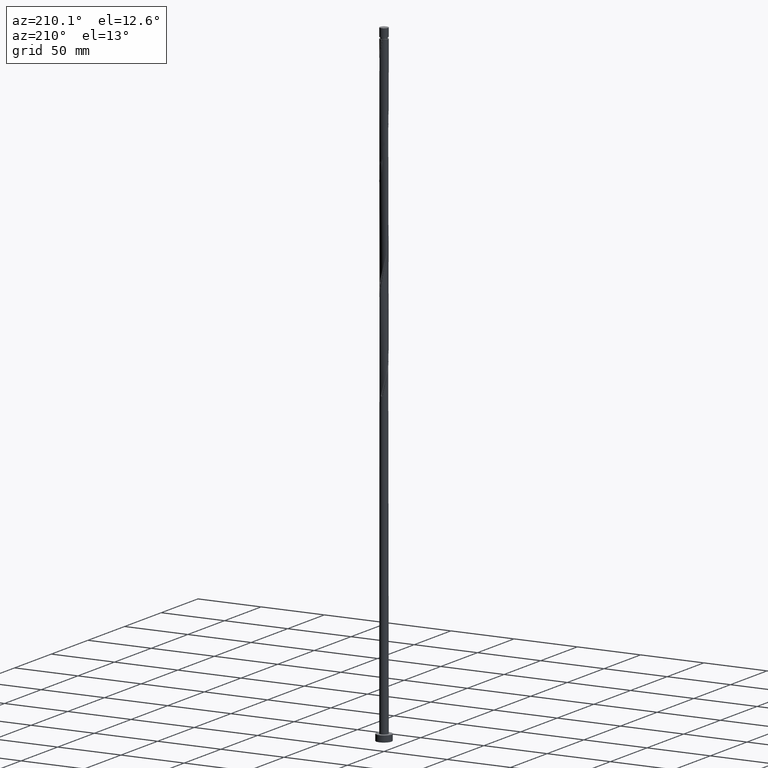
[diagram: clean part render]
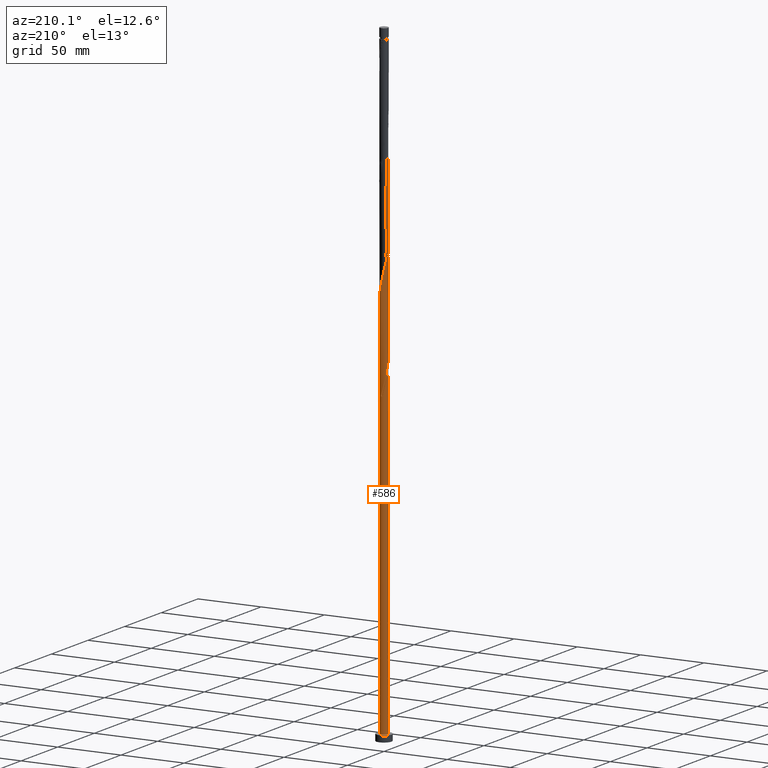
[diagram: same view with one face highlighted and labeled with its STEP entity id]
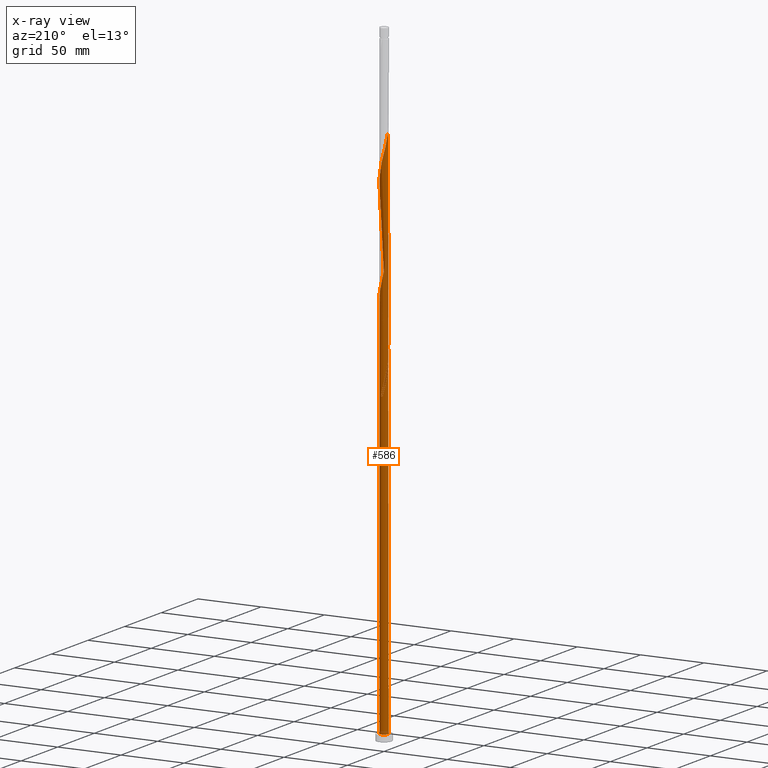
[diagram: x-ray of the same camera — body ghosted, the highlighted face saturated]
A machine part, auxiliary view. The second image highlights one B-rep face of the part: STEP entity #586.
The next image is the same camera in x-ray: the body ghosted, the highlighted face saturated — about 0% of this face is hidden behind the body in this view.
In plain terms, the highlighted cylindrical surface (bore or boss wall) has radius 3.25 mm, axis along (-0, -0, -1).
Its self-contained STEP definition (entity closure, byte-faithful):
#17 = CARTESIAN_POINT ( 'NONE',  ( -3.248698510852201071, -0.3330467144267394430, 261.6656047902229147 ) ) ;
#23 = CARTESIAN_POINT ( 'NONE',  ( -2.288920203698420863, -2.307237374242452788, 270.7801881235562291 ) ) ;
#28 = CARTESIAN_POINT ( 'NONE',  ( 0.3071423234190679419, 3.251249870675660070, 404.8947714568895435 ) ) ;
#32 = CARTESIAN_POINT ( 'NONE',  ( 0.6467418341193081899, -3.185000000000003606, 283.8010214568896572 ) ) ;
#38 = CARTESIAN_POINT ( 'NONE',  ( 1.550918139681272345, -2.873954601661504071, 371.0406047902229147 ) ) ;
#44 = CARTESIAN_POINT ( 'NONE',  ( -3.249974190763930348, -0.01295219550383595354, 260.3635214568896004 ) ) ;
#53 = CARTESIAN_POINT ( 'NONE',  ( -0.9355280540232800979, -3.128857521290985932, 277.2906047902229147 ) ) ;
#55 = VERTEX_POINT ( 'NONE', #1147 ) ;
#69 = CARTESIAN_POINT ( 'NONE',  ( -3.121301489147807917, -0.9604369538118774363, 347.6031047902229716 ) ) ;
#91 = CARTESIAN_POINT ( 'NONE',  ( -2.886224932046612235, 1.527961966161554663, 337.1864381235563428 ) ) ;
#100 = EDGE_CURVE ( 'NONE', #1021, #1805, #393, .T. ) ;
#103 = CARTESIAN_POINT ( 'NONE',  ( -3.249974190763930348, -0.01295219550383595354, 343.6968547902228579 ) ) ;
#116 = CARTESIAN_POINT ( 'NONE',  ( -1.816358275444451609, 2.695058926113581776, 330.6760214568896004 ) ) ;
#131 = CARTESIAN_POINT ( 'NONE',  ( -0.9355280540232774333, 3.128857521290980603, 248.6447714568896856 ) ) ;
#145 = EDGE_LOOP ( 'NONE', ( #383, #1097, #611, #1856, #1432, #1929, #1657, #410, #1222 ) ) ;
#158 = CARTESIAN_POINT ( 'NONE',  ( -3.007541226668799528, 1.231745010092417436, 421.8218547902229716 ) ) ;
#162 = CARTESIAN_POINT ( 'NONE',  ( 0.000000000000000000, 0.000000000000000000, 242.1343547902230000 ) ) ;
#173 = CARTESIAN_POINT ( 'NONE',  ( -0.6213351887211736591, -3.190053695983322779, 278.5926881235562291 ) ) ;
#178 = CARTESIAN_POINT ( 'NONE',  ( -1.816358275444451609, 2.695058926113581776, 414.0093547902228579 ) ) ;
#184 = CARTESIAN_POINT ( 'NONE',  ( -2.695058926113581776, -1.816358275444451165, 268.1760214568896572 ) ) ;
#192 = CARTESIAN_POINT ( 'NONE',  ( -0.3071423234190676088, -3.251249870675660070, 363.2281047902229716 ) ) ;
#193 = CARTESIAN_POINT ( 'NONE',  ( -1.816358275444451609, 2.695058926113581776, 247.3426881235563144 ) ) ;
#202 = CARTESIAN_POINT ( 'NONE',  ( -2.288920203698420863, -2.307237374242452788, 354.1135214568895435 ) ) ;
#216 = CARTESIAN_POINT ( 'NONE',  ( 0.6467418341193081899, -3.185000000000003606, 367.1343547902229147 ) ) ;
#225 = FACE_OUTER_BOUND ( 'NONE', #145, .T. ) ;
#230 = CARTESIAN_POINT ( 'NONE',  ( 3.185000000000003606, 0.6467418341193080789, 387.9676881235561723 ) ) ;
#236 = CARTESIAN_POINT ( 'NONE',  ( -0.3330467144267403312, 3.248698510852201071, 407.4989381235562291 ) ) ;
#241 = CARTESIAN_POINT ( 'NONE',  ( 2.709450634661944690, -1.794819561496368898, 294.2176881235562860 ) ) ;
#242 = DIRECTION ( 'NONE',  ( -0.000000000000000000, -0.000000000000000000, -1.000000000000000000 ) ) ;
#244 = CYLINDRICAL_SURFACE ( 'NONE', #1769, 3.250000000000000444 ) ;
#265 = CARTESIAN_POINT ( 'NONE',  ( 2.061677156831182245, 2.532676337277277590, 397.0822714568896572 ) ) ;
#277 = CARTESIAN_POINT ( 'NONE',  ( 0.3071423234190679419, 3.251249870675660070, 321.5614381235562860 ) ) ;
#282 = VERTEX_POINT ( 'NONE', #1324 ) ;
#286 = CARTESIAN_POINT ( 'NONE',  ( 2.997628045404655328, 1.255677546746574613, 307.2385214568896572 ) ) ;
#295 = CARTESIAN_POINT ( 'NONE',  ( -0.9604369538118772143, 3.121301489147807917, 410.1031047902229147 ) ) ;
#309 = CARTESIAN_POINT ( 'NONE',  ( -3.249974190763924575, 0.01295219550383701346, 265.5718547902229147 ) ) ;
#344 = VERTEX_POINT ( 'NONE', #911 ) ;
#352 = EDGE_CURVE ( 'NONE', #282, #55, #735, .T. ) ;
#363 = CARTESIAN_POINT ( 'NONE',  ( -0.9355280540232800979, -3.128857521290985932, 360.6239381235562860 ) ) ;
#364 = CARTESIAN_POINT ( 'NONE',  ( 0.01295219550383510179, -3.249974190763930348, 281.1968547902229147 ) ) ;
#374 = CARTESIAN_POINT ( 'NONE',  ( 2.873954601661504071, 1.550918139681272123, 308.5406047902229716 ) ) ;
#380 = CARTESIAN_POINT ( 'NONE',  ( -3.250000000000000444, 0.000000000000000000, 500.0000000000000000 ) ) ;
#383 = ORIENTED_EDGE ( 'NONE', *, *, #100, .F. ) ;
#391 = CARTESIAN_POINT ( 'NONE',  ( -1.255677546746574391, 2.997628045404656216, 328.0718547902229147 ) ) ;
#393 = LINE ( 'NONE', #1001, #1860 ) ;
#399 = EDGE_CURVE ( 'NONE', #1805, #55, #1438, .T. ) ;
#410 = ORIENTED_EDGE ( 'NONE', *, *, #352, .T. ) ;
#423 = CARTESIAN_POINT ( 'NONE',  ( -2.081798411207630206, 2.516163250565659038, 248.6447714568896572 ) ) ;
#427 = CARTESIAN_POINT ( 'NONE',  ( 1.527961966161555774, 2.886224932046612235, 399.6864381235562860 ) ) ;
#428 = CARTESIAN_POINT ( 'NONE',  ( 0.6213351887211757685, 3.190053695983322335, 320.2593547902229716 ) ) ;
#430 = CARTESIAN_POINT ( 'NONE',  ( -3.248698510852195298, 0.3330467144267397761, 264.2697714568896004 ) ) ;
#432 = CARTESIAN_POINT ( 'NONE',  ( -3.007541226668799528, 1.231745010092417436, 255.1551881235563144 ) ) ;
#437 = CARTESIAN_POINT ( 'NONE',  ( 2.532676337277277145, -2.061677156831183133, 292.9156047902229716 ) ) ;
#441 = CARTESIAN_POINT ( 'NONE',  ( -1.794819561496365123, 2.709450634661940693, 252.5510214568896572 ) ) ;
#452 = CARTESIAN_POINT ( 'NONE',  ( -3.121301489147800368, 0.9604369538118764371, 261.6656047902229147 ) ) ;
#458 = CARTESIAN_POINT ( 'NONE',  ( -2.709450634661944690, 1.794819561496368454, 252.5510214568895719 ) ) ;
#460 = CARTESIAN_POINT ( 'NONE',  ( -2.886224932046612235, 1.527961966161554663, 420.5197714568896572 ) ) ;
#464 = CARTESIAN_POINT ( 'NONE',  ( 0.3330467144267392210, -3.248698510852201071, 365.8322714568895435 ) ) ;
#466 = CARTESIAN_POINT ( 'NONE',  ( 0.3330467144267399981, 3.248698510852195298, 243.4364381235562860 ) ) ;
#471 = CARTESIAN_POINT ( 'NONE',  ( -2.709450634661944690, 1.794819561496368454, 419.2176881235562860 ) ) ;
#476 = CARTESIAN_POINT ( 'NONE',  ( -2.997628045404656216, -1.255677546746574391, 265.5718547902228579 ) ) ;
#495 = CARTESIAN_POINT ( 'NONE',  ( -1.794819561496368454, -2.709450634661944690, 273.3843547902229716 ) ) ;
#501 = CARTESIAN_POINT ( 'NONE',  ( 0.9604369538118772143, -3.121301489147807917, 368.4364381235562291 ) ) ;
#505 = CARTESIAN_POINT ( 'NONE',  ( -1.527961966161554663, -2.886224932046612679, 358.0197714568896572 ) ) ;
#506 = CARTESIAN_POINT ( 'NONE',  ( -2.873954601661504071, -1.550918139681272345, 266.8739381235563428 ) ) ;
#517 = CARTESIAN_POINT ( 'NONE',  ( 0.9604369538118772143, -3.121301489147807917, 285.1031047902229716 ) ) ;
#525 = CARTESIAN_POINT ( 'NONE',  ( 3.249974190763929904, 0.01295219550383489189, 385.3635214568896004 ) ) ;
#528 = CARTESIAN_POINT ( 'NONE',  ( 3.128857521290985932, -0.9355280540232800979, 298.1239381235563428 ) ) ;
#544 = CARTESIAN_POINT ( 'NONE',  ( -0.9604369538118772143, 3.121301489147807917, 326.7697714568896004 ) ) ;
#550 = AXIS2_PLACEMENT_3D ( 'NONE', #1352, #1365, #1031 ) ;
#563 = CARTESIAN_POINT ( 'NONE',  ( -0.01295219550383478260, 3.249974190763929904, 322.8635214568894867 ) ) ;
#574 = CARTESIAN_POINT ( 'NONE',  ( -3.248698510852201071, -0.3330467144267394430, 344.9989381235563428 ) ) ;
#578 = CARTESIAN_POINT ( 'NONE',  ( -2.886224932046612235, 1.527961966161554663, 253.8531047902229432 ) ) ;
#583 = CARTESIAN_POINT ( 'NONE',  ( -2.532676337277277590, 2.061677156831182689, 334.5822714568896004 ) ) ;
#585 = CARTESIAN_POINT ( 'NONE',  ( -3.250000000000000000, 1.108978815598836682E-16, 265.6245517682197601 ) ) ;
#586 = ADVANCED_FACE ( 'NONE', ( #225 ), #244, .T. ) ;
#599 = CARTESIAN_POINT ( 'NONE',  ( -0.9604369538118772143, 3.121301489147807917, 243.4364381235563428 ) ) ;
#611 = ORIENTED_EDGE ( 'NONE', *, *, #1165, .T. ) ;
#619 = CARTESIAN_POINT ( 'NONE',  ( -1.527961966161551111, 2.886224932046607350, 251.2489381235563144 ) ) ;
#633 = CARTESIAN_POINT ( 'NONE',  ( -2.307237374242453232, 2.288920203698419975, 416.6135214568894867 ) ) ;
#638 = CARTESIAN_POINT ( 'NONE',  ( -0.3071423234190676088, -3.251249870675660070, 279.8947714568896572 ) ) ;
#644 = CARTESIAN_POINT ( 'NONE',  ( -1.527961966161554663, -2.886224932046612679, 274.6864381235561723 ) ) ;
#662 = CARTESIAN_POINT ( 'NONE',  ( 2.997628045404655328, 1.255677546746574613, 390.5718547902229147 ) ) ;
#679 = CARTESIAN_POINT ( 'NONE',  ( 2.532676337277277145, -2.061677156831183133, 376.2489381235563428 ) ) ;
#684 = CARTESIAN_POINT ( 'NONE',  ( 3.248698510852201071, 0.3330467144267406088, 303.3322714568896004 ) ) ;
#708 = CARTESIAN_POINT ( 'NONE',  ( -2.081798411207630206, 2.516163250565659038, 331.9781047902229147 ) ) ;
#727 = CARTESIAN_POINT ( 'NONE',  ( 0.01295219550383680182, 3.249974190763924575, 244.7385214568896004 ) ) ;
#728 = AXIS2_PLACEMENT_3D ( 'NONE', #1068, #1387, #1682 ) ;
#730 = CARTESIAN_POINT ( 'NONE',  ( -1.550918139681272789, 2.873954601661503627, 246.0406047902228863 ) ) ;
#735 = CIRCLE ( 'NONE', #1180, 3.250000000000000444 ) ;
#778 = EDGE_CURVE ( 'NONE', #282, #1083, #1777, .T. ) ;
#800 = DIRECTION ( 'NONE',  ( -0.000000000000000000, -0.000000000000000000, -1.000000000000000000 ) ) ;
#822 = CARTESIAN_POINT ( 'NONE',  ( 2.307237374242453232, -2.288920203698421307, 291.6135214568896004 ) ) ;
#838 = EDGE_CURVE ( 'NONE', #979, #344, #1408, .T. ) ;
#847 = CARTESIAN_POINT ( 'NONE',  ( -2.307237374242453232, 2.288920203698419975, 333.2801881235563428 ) ) ;
#866 = CARTESIAN_POINT ( 'NONE',  ( 1.794819561496368898, 2.709450634661944690, 398.3843547902227442 ) ) ;
#885 = CARTESIAN_POINT ( 'NONE',  ( 3.249974190763929904, 0.01295219550383489189, 302.0301881235562291 ) ) ;
#887 = CARTESIAN_POINT ( 'NONE',  ( 1.231745010092417214, 3.007541226668799528, 400.9885214568894867 ) ) ;
#894 = CARTESIAN_POINT ( 'NONE',  ( -3.250000000000006661, 0.3135593985191898470, 259.0348443734768011 ) ) ;
#898 = CARTESIAN_POINT ( 'NONE',  ( 2.695058926113581776, 1.816358275444452053, 309.8426881235562291 ) ) ;
#911 = CARTESIAN_POINT ( 'NONE',  ( 3.250000000000000444, 0.000000000000000000, 5.000000000000000000 ) ) ;
#916 = CARTESIAN_POINT ( 'NONE',  ( -3.128857521290985932, 0.9355280540232800979, 256.4572714568896004 ) ) ;
#920 = CARTESIAN_POINT ( 'NONE',  ( -2.997628045404650443, 1.255677546746573281, 260.3635214568896004 ) ) ;
#933 = CARTESIAN_POINT ( 'NONE',  ( -1.255677546746574391, 2.997628045404656216, 411.4051881235562860 ) ) ;
#939 = CARTESIAN_POINT ( 'NONE',  ( -3.250000000000004885, 9.719873148483848127E-16, 260.3108244788927550 ) ) ;
#947 = LINE ( 'NONE', #380, #1828 ) ;
#955 = CARTESIAN_POINT ( 'NONE',  ( 3.007541226668799528, -1.231745010092417214, 380.1551881235562860 ) ) ;
#967 = CARTESIAN_POINT ( 'NONE',  ( 0.01295219550383510179, -3.249974190763930348, 364.5301881235562860 ) ) ;
#968 = CARTESIAN_POINT ( 'NONE',  ( -3.121301489147807917, -0.9604369538118774363, 264.2697714568896004 ) ) ;
#978 = CARTESIAN_POINT ( 'NONE',  ( -0.6213351887211736591, -3.190053695983322779, 361.9260214568895435 ) ) ;
#979 = VERTEX_POINT ( 'NONE', #1793 ) ;
#985 = CARTESIAN_POINT ( 'NONE',  ( 3.248698510852201071, 0.3330467144267406088, 386.6656047902229716 ) ) ;
#998 = CARTESIAN_POINT ( 'NONE',  ( -0.6467418341193077458, 3.185000000000003606, 325.4676881235562860 ) ) ;
#1001 = CARTESIAN_POINT ( 'NONE',  ( -3.250000000000000444, 0.000000000000000000, 500.0000000000000000 ) ) ;
#1008 = CARTESIAN_POINT ( 'NONE',  ( 0.9355280540232803199, 3.128857521290985932, 318.9572714568896004 ) ) ;
#1010 = CARTESIAN_POINT ( 'NONE',  ( 2.886224932046612235, -1.527961966161555774, 295.5197714568896004 ) ) ;
#1014 = DIRECTION ( 'NONE',  ( -0.000000000000000000, -0.000000000000000000, -1.000000000000000000 ) ) ;
#1019 = CARTESIAN_POINT ( 'NONE',  ( -3.251249870675660958, 0.3071423234190671647, 342.3947714568896004 ) ) ;
#1021 = VERTEX_POINT ( 'NONE', #1323 ) ;
#1027 = CARTESIAN_POINT ( 'NONE',  ( -3.185000000000003606, -0.6467418341193084119, 346.3010214568895435 ) ) ;
#1031 = DIRECTION ( 'NONE',  ( 1.000000000000000000, 0.000000000000000000, 0.000000000000000000 ) ) ;
#1033 = CARTESIAN_POINT ( 'NONE',  ( -0.01295219550383478260, 3.249974190763929904, 406.1968547902229147 ) ) ;
#1037 = CARTESIAN_POINT ( 'NONE',  ( -2.873954601661499186, 1.550918139681270347, 259.0614381235562860 ) ) ;
#1040 = CARTESIAN_POINT ( 'NONE',  ( -3.190053695983322779, 0.6213351887211735480, 257.7593547902229147 ) ) ;
#1044 = CARTESIAN_POINT ( 'NONE',  ( 3.121301489147807917, 0.9604369538118755489, 305.9364381235562860 ) ) ;
#1068 = CARTESIAN_POINT ( 'NONE',  ( 0.000000000000000000, 0.000000000000000000, 5.000000000000000000 ) ) ;
#1071 = DIRECTION ( 'NONE',  ( 0.000000000000000000, 1.000000000000000000, -1.708035422500240443E-14 ) ) ;
#1077 = CARTESIAN_POINT ( 'NONE',  ( -3.128857521290985932, 0.9355280540232800979, 423.1239381235563997 ) ) ;
#1083 = VERTEX_POINT ( 'NONE', #1206 ) ;
#1095 = CARTESIAN_POINT ( 'NONE',  ( -2.997628045404656216, -1.255677546746574391, 348.9051881235563428 ) ) ;
#1097 = ORIENTED_EDGE ( 'NONE', *, *, #1687, .F. ) ;
#1101 = CARTESIAN_POINT ( 'NONE',  ( 2.307237374242453232, -2.288920203698421307, 374.9468547902228579 ) ) ;
#1109 = CARTESIAN_POINT ( 'NONE',  ( 1.550918139681272345, -2.873954601661504071, 287.7072714568896004 ) ) ;
#1128 = CARTESIAN_POINT ( 'NONE',  ( 1.794819561496368898, 2.709450634661944690, 315.0510214568896004 ) ) ;
#1146 = CARTESIAN_POINT ( 'NONE',  ( -2.061677156831183133, -2.532676337277277590, 355.4156047902229147 ) ) ;
#1147 = CARTESIAN_POINT ( 'NONE',  ( 0.6467418341193087450, 3.184999999999997833, 242.1343547902229432 ) ) ;
#1155 = CARTESIAN_POINT ( 'NONE',  ( 1.527961966161555774, 2.886224932046612235, 316.3531047902229147 ) ) ;
#1165 = EDGE_CURVE ( 'NONE', #1083, #979, #947, .T. ) ;
#1169 = CARTESIAN_POINT ( 'NONE',  ( 0.000000000000000000, 0.000000000000000000, 500.0000000000000000 ) ) ;
#1180 = AXIS2_PLACEMENT_3D ( 'NONE', #162, #1813, #1071 ) ;
#1185 = CARTESIAN_POINT ( 'NONE',  ( -3.249999999999999556, 0.006476123466349236434, 265.5981982137024602 ) ) ;
#1190 = CARTESIAN_POINT ( 'NONE',  ( -2.532676337277277590, 2.061677156831182689, 251.2489381235563712 ) ) ;
#1206 = CARTESIAN_POINT ( 'NONE',  ( -3.250000000000004885, 9.719873148483848127E-16, 260.3108244788927550 ) ) ;
#1218 = CARTESIAN_POINT ( 'NONE',  ( -0.6213351887211718827, 3.190053695983317006, 247.3426881235562576 ) ) ;
#1222 = ORIENTED_EDGE ( 'NONE', *, *, #399, .F. ) ;
#1228 = CARTESIAN_POINT ( 'NONE',  ( -2.288920203698416422, 2.307237374242450123, 255.1551881235563144 ) ) ;
#1249 = CARTESIAN_POINT ( 'NONE',  ( 0.3330467144267392210, -3.248698510852201071, 282.4989381235562860 ) ) ;
#1256 = CARTESIAN_POINT ( 'NONE',  ( 1.255677546746574835, -2.997628045404655328, 286.4051881235562291 ) ) ;
#1264 = CARTESIAN_POINT ( 'NONE',  ( 2.873954601661504071, 1.550918139681272123, 391.8739381235562291 ) ) ;
#1266 = CARTESIAN_POINT ( 'NONE',  ( -2.516163250565659038, -2.081798411207630206, 352.8114381235562291 ) ) ;
#1278 = CARTESIAN_POINT ( 'NONE',  ( 2.061677156831182245, 2.532676337277277590, 313.7489381235562291 ) ) ;
#1283 = CARTESIAN_POINT ( 'NONE',  ( 2.081798411207630206, -2.516163250565659038, 373.6447714568897140 ) ) ;
#1290 = CARTESIAN_POINT ( 'NONE',  ( -2.695058926113581776, -1.816358275444451165, 351.5093547902228579 ) ) ;
#1291 = CARTESIAN_POINT ( 'NONE',  ( 2.516163250565659038, 2.081798411207630206, 311.1447714568896572 ) ) ;
#1316 = DIRECTION ( 'NONE',  ( -1.000000000000000000, 0.000000000000000000, 0.000000000000000000 ) ) ;
#1323 = CARTESIAN_POINT ( 'NONE',  ( -3.250000000000004885, 9.719873148483848127E-16, 426.9774911455594975 ) ) ;
#1324 = CARTESIAN_POINT ( 'NONE',  ( -0.6467418341193077458, 3.185000000000003606, 242.1343547902229432 ) ) ;
#1335 = CARTESIAN_POINT ( 'NONE',  ( -2.516163250565653708, 2.081798411207627986, 256.4572714568896572 ) ) ;
#1345 = CARTESIAN_POINT ( 'NONE',  ( 3.251249870675660070, -0.3071423234190678309, 300.7281047902229147 ) ) ;
#1352 = CARTESIAN_POINT ( 'NONE',  ( 0.000000000000000000, 0.000000000000000000, 5.000000000000000000 ) ) ;
#1365 = DIRECTION ( 'NONE',  ( 0.000000000000000000, 0.000000000000000000, 1.000000000000000000 ) ) ;
#1378 = CARTESIAN_POINT ( 'NONE',  ( -3.190053695983322779, 0.6213351887211735480, 424.4260214568896572 ) ) ;
#1387 = DIRECTION ( 'NONE',  ( 0.000000000000000000, 0.000000000000000000, 1.000000000000000000 ) ) ;
#1401 = CARTESIAN_POINT ( 'NONE',  ( -2.516163250565659038, -2.081798411207630206, 269.4781047902229147 ) ) ;
#1405 = CARTESIAN_POINT ( 'NONE',  ( 0.6213351887211757685, 3.190053695983322335, 403.5926881235561723 ) ) ;
#1408 = CIRCLE ( 'NONE', #550, 3.250000000000000444 ) ;
#1411 = CARTESIAN_POINT ( 'NONE',  ( -1.231745010092417214, -3.007541226668799972, 275.9885214568896572 ) ) ;
#1429 = CARTESIAN_POINT ( 'NONE',  ( 3.251249870675660070, -0.3071423234190678309, 384.0614381235565133 ) ) ;
#1432 = ORIENTED_EDGE ( 'NONE', *, *, #1484, .T. ) ;
#1435 = CARTESIAN_POINT ( 'NONE',  ( 1.255677546746574835, -2.997628045404655328, 369.7385214568895435 ) ) ;
#1438 =( BOUNDED_CURVE ( )  B_SPLINE_CURVE ( 2, ( #585, #1185, #309, #430, #1977, #452, #920, #1037, #1500, #1335, #1228, #1654, #441, #619, #1955, #131, #1218, #1835, #727, #466, #1488 ),
 .UNSPECIFIED., .F., .T. ) 
 B_SPLINE_CURVE_WITH_KNOTS ( ( 3, 2, 2, 2, 2, 2, 2, 2, 2, 2, 3 ),
 ( 0.9295286902180871502, 0.9296875000000000000, 0.9375000000000000000, 0.9453125000000000000, 0.9531250000000000000, 0.9609375000000000000, 0.9687500000000000000, 0.9765625000000000000, 0.9843750000000000000, 0.9921875000000000000, 1.000000000000000000 ),
 .UNSPECIFIED. ) 
 CURVE ( )  GEOMETRIC_REPRESENTATION_ITEM ( )  RATIONAL_B_SPLINE_CURVE ( ( 0.9089165573359710981, 0.9090019243628759682, 0.9090909090909677914, 0.9047133878838736765, 0.9090909090909677914, 0.9047133878838736765, 0.9090909090909677914, 0.9047133878838736765, 0.9090909090909677914, 0.9047133878838736765, 0.9090909090909677914, 0.9047133878838736765, 0.9090909090909677914, 0.9047133878838736765, 0.9090909090909677914, 0.9047133878838736765, 0.9090909090909677914, 0.9047133878838736765, 0.9090909090909677914, 0.9047133878838736765, 0.9090909090909677914 ) ) 
 REPRESENTATION_ITEM ( '' )  );
#1448 = CARTESIAN_POINT ( 'NONE',  ( 3.121301489147807917, 0.9604369538118755489, 389.2697714568896004 ) ) ;
#1458 = CARTESIAN_POINT ( 'NONE',  ( 3.007541226668799528, -1.231745010092417214, 296.8218547902228579 ) ) ;
#1467 = CARTESIAN_POINT ( 'NONE',  ( -2.709450634661944690, 1.794819561496368454, 335.8843547902229716 ) ) ;
#1476 = CARTESIAN_POINT ( 'NONE',  ( -3.190053695983322779, 0.6213351887211735480, 341.0926881235562291 ) ) ;
#1484 = EDGE_CURVE ( 'NONE', #344, #979, #1563, .T. ) ;
#1488 = CARTESIAN_POINT ( 'NONE',  ( 0.6467418341193088560, 3.184999999999997833, 242.1343547902229432 ) ) ;
#1489 =( BOUNDED_CURVE ( )  B_SPLINE_CURVE ( 2, ( #939, #1555, #44, #17, #1548, #968, #476, #506, #184, #1401, #23, #1719, #495, #644, #1411, #53, #173, #638, #364, #1249, #32, #517, #1256, #1109, #1583, #1731, #822, #437, #241, #1010, #1458, #528, #1625, #1345, #885, #684, #1901, #1044, #286, #374, #898, #1291, #1509, #1278, #1128, #1155, #1917, #1008, #428, #277, #563, #1622, #998, #544, #391, #1613, #116, #708, #847, #583, #1467, #91, #1783, #1791, #1476, #1019, #103, #574, #1027, #69, #1095, #1741, #1290, #1266, #202, #1146, #1768, #505, #1565, #363, #978, #192, #967, #464, #216, #501, #1435, #38, #1570, #1283, #1101, #679, #1896, #1725, #955, #1526, #1573, #1429, #525, #985, #230, #1448, #662, #1264, #1604, #1632, #1944, #265, #866, #427, #887, #1764, #1405, #28, #1033, #236, #1619, #295, #933, #1972, #178, #1830, #633, #1507, #471, #460, #158, #1077, #1378, #1696, #1551 ),
 .UNSPECIFIED., .F., .T. ) 
 B_SPLINE_CURVE_WITH_KNOTS ( ( 3, 2, 2, 2, 2, 2, 2, 2, 2, 2, 2, 2, 2, 2, 2, 2, 2, 2, 2, 2, 2, 2, 2, 2, 2, 2, 2, 2, 2, 2, 2, 2, 2, 2, 2, 2, 2, 2, 2, 2, 2, 2, 2, 2, 2, 2, 2, 2, 2, 2, 2, 2, 2, 2, 2, 2, 2, 2, 2, 2, 2, 2, 2, 2, 2, 3 ),
 ( 0.05452869021808715022, 0.05468750000000000000, 0.06250000000000000000, 0.07031250000000000000, 0.07812500000000000000, 0.08593750000000000000, 0.09375000000000000000, 0.1015625000000000000, 0.1093750000000000000, 0.1171875000000000000, 0.1250000000000000000, 0.1328125000000000000, 0.1406250000000000000, 0.1484375000000000000, 0.1562500000000000000, 0.1640625000000000000, 0.1718750000000000000, 0.1796875000000000000, 0.1875000000000000000, 0.1953125000000000000, 0.2031250000000000000, 0.2109375000000000000, 0.2187500000000000000, 0.2265625000000000000, 0.2343750000000000000, 0.2421875000000000000, 0.2500000000000000000, 0.2578125000000000000, 0.2656250000000000000, 0.2734375000000000000, 0.2812500000000000000, 0.2890625000000000000, 0.2968750000000000000, 0.3046875000000000000, 0.3125000000000000000, 0.3203125000000000000, 0.3281250000000000000, 0.3359375000000000000, 0.3437500000000000000, 0.3515625000000000000, 0.3593750000000000000, 0.3671875000000000000, 0.3750000000000000000, 0.3828125000000000000, 0.3906250000000000000, 0.3984375000000000000, 0.4062500000000000000, 0.4140625000000000000, 0.4218750000000000000, 0.4296875000000000000, 0.4375000000000000000, 0.4453125000000000000, 0.4531250000000000000, 0.4609375000000000000, 0.4687500000000000000, 0.4765625000000000000, 0.4843750000000000000, 0.4921875000000000000, 0.5000000000000000000, 0.5078125000000000000, 0.5156250000000000000, 0.5234375000000000000, 0.5312500000000000000, 0.5390625000000000000, 0.5468750000000000000, 0.5545286902180868172 ),
 .UNSPECIFIED. ) 
 CURVE ( )  GEOMETRIC_REPRESENTATION_ITEM ( )  RATIONAL_B_SPLINE_CURVE ( ( 0.9089165573359779815, 0.9090019243628828516, 0.9090909090909746748, 0.9047133878838805598, 0.9090909090909746748, 0.9047133878838805598, 0.9090909090909746748, 0.9047133878838805598, 0.9090909090909746748, 0.9047133878838805598, 0.9090909090909746748, 0.9047133878838805598, 0.9090909090909746748, 0.9047133878838805598, 0.9090909090909746748, 0.9047133878838805598, 0.9090909090909746748, 0.9047133878838805598, 0.9090909090909746748, 0.9047133878838805598, 0.9090909090909746748, 0.9047133878838805598, 0.9090909090909746748, 0.9047133878838805598, 0.9090909090909746748, 0.9047133878838805598, 0.9090909090909746748, 0.9047133878838805598, 0.9090909090909746748, 0.9047133878838805598, 0.9090909090909746748, 0.9047133878838805598, 0.9090909090909746748, 0.9047133878838805598, 0.9090909090909746748, 0.9047133878838805598, 0.9090909090909746748, 0.9047133878838805598, 0.9090909090909746748, 0.9047133878838805598, 0.9090909090909746748, 0.9047133878838805598, 0.9090909090909746748, 0.9047133878838805598, 0.9090909090909746748, 0.9047133878838805598, 0.9090909090909746748, 0.9047133878838805598, 0.9090909090909746748, 0.9047133878838805598, 0.9090909090909746748, 0.9047133878838805598, 0.9090909090909746748, 0.9047133878838805598, 0.9090909090909746748, 0.9047133878838805598, 0.9090909090909746748, 0.9047133878838805598, 0.9090909090909746748, 0.9047133878838805598, 0.9090909090909746748, 0.9047133878838805598, 0.9090909090909746748, 0.9047133878838805598, 0.9090909090909746748, 0.9047133878838805598, 0.9090909090909746748, 0.9047133878838805598, 0.9090909090909746748, 0.9047133878838805598, 0.9090909090909746748, 0.9047133878838805598, 0.9090909090909746748, 0.9047133878838805598, 0.9090909090909746748, 0.9047133878838805598, 0.9090909090909746748, 0.9047133878838805598, 0.9090909090909746748, 0.9047133878838805598, 0.9090909090909746748, 0.9047133878838805598, 0.9090909090909746748, 0.9047133878838805598, 0.9090909090909746748, 0.9047133878838805598, 0.9090909090909746748, 0.9047133878838805598, 0.9090909090909746748, 0.9047133878838805598, 0.9090909090909746748, 0.9047133878838805598, 0.9090909090909746748, 0.9047133878838805598, 0.9090909090909746748, 0.9047133878838805598, 0.9090909090909746748, 0.9047133878838805598, 0.9090909090909746748, 0.9047133878838805598, 0.9090909090909746748, 0.9047133878838805598, 0.9090909090909746748, 0.9047133878838805598, 0.9090909090909746748, 0.9047133878838805598, 0.9090909090909746748, 0.9047133878838805598, 0.9090909090909746748, 0.9047133878838805598, 0.9090909090909746748, 0.9047133878838805598, 0.9090909090909746748, 0.9047133878838805598, 0.9090909090909746748, 0.9047133878838805598, 0.9090909090909746748, 0.9047133878838805598, 0.9090909090909746748, 0.9047133878838805598, 0.9090909090909746748, 0.9047133878838805598, 0.9090909090909746748, 0.9047133878838805598, 0.9090909090909746748, 0.9047133878838805598, 0.9090909090909746748, 0.9047133878838805598, 0.9090909090909746748, 0.9048023726119726051, 0.9089165573359776484 ) ) 
 REPRESENTATION_ITEM ( '' )  );
#1500 = CARTESIAN_POINT ( 'NONE',  ( -2.695058926113576003, 1.816358275444448722, 257.7593547902229147 ) ) ;
#1507 = CARTESIAN_POINT ( 'NONE',  ( -2.532676337277277590, 2.061677156831182689, 417.9156047902229716 ) ) ;
#1509 = CARTESIAN_POINT ( 'NONE',  ( 2.288920203698421307, 2.307237374242452788, 312.4468547902228011 ) ) ;
#1526 = CARTESIAN_POINT ( 'NONE',  ( 3.128857521290985932, -0.9355280540232800979, 381.4572714568896004 ) ) ;
#1529 = CARTESIAN_POINT ( 'NONE',  ( -2.307237374242453232, 2.288920203698419975, 249.9468547902229147 ) ) ;
#1548 = CARTESIAN_POINT ( 'NONE',  ( -3.185000000000003606, -0.6467418341193084119, 262.9676881235562860 ) ) ;
#1551 = CARTESIAN_POINT ( 'NONE',  ( -3.250000000000004885, 9.719873148483848127E-16, 426.9774911455594975 ) ) ;
#1555 = CARTESIAN_POINT ( 'NONE',  ( -3.250000000000004885, -0.006476123466348168711, 260.3371780334099981 ) ) ;
#1563 = CIRCLE ( 'NONE', #728, 3.250000000000000444 ) ;
#1565 = CARTESIAN_POINT ( 'NONE',  ( -1.231745010092417214, -3.007541226668799972, 359.3218547902229147 ) ) ;
#1570 = CARTESIAN_POINT ( 'NONE',  ( 1.816358275444450943, -2.695058926113582221, 372.3426881235562291 ) ) ;
#1573 = CARTESIAN_POINT ( 'NONE',  ( 3.190053695983322335, -0.6213351887211754354, 382.7593547902229147 ) ) ;
#1583 = CARTESIAN_POINT ( 'NONE',  ( 1.816358275444450943, -2.695058926113582221, 289.0093547902229147 ) ) ;
#1604 = CARTESIAN_POINT ( 'NONE',  ( 2.695058926113581776, 1.816358275444452053, 393.1760214568896004 ) ) ;
#1613 = CARTESIAN_POINT ( 'NONE',  ( -1.550918139681272789, 2.873954601661503627, 329.3739381235563428 ) ) ;
#1619 = CARTESIAN_POINT ( 'NONE',  ( -0.6467418341193077458, 3.185000000000003606, 408.8010214568896572 ) ) ;
#1622 = CARTESIAN_POINT ( 'NONE',  ( -0.3330467144267403312, 3.248698510852201071, 324.1656047902229716 ) ) ;
#1625 = CARTESIAN_POINT ( 'NONE',  ( 3.190053695983322335, -0.6213351887211754354, 299.4260214568895435 ) ) ;
#1632 = CARTESIAN_POINT ( 'NONE',  ( 2.516163250565659038, 2.081798411207630206, 394.4781047902229147 ) ) ;
#1654 = CARTESIAN_POINT ( 'NONE',  ( -2.061677156831178692, 2.532676337277274481, 253.8531047902229432 ) ) ;
#1657 = ORIENTED_EDGE ( 'NONE', *, *, #778, .F. ) ;
#1658 = CARTESIAN_POINT ( 'NONE',  ( -3.250000000000004885, 9.719873148483848127E-16, 260.3108244788927550 ) ) ;
#1682 = DIRECTION ( 'NONE',  ( 1.000000000000000000, 0.000000000000000000, 0.000000000000000000 ) ) ;
#1687 = EDGE_CURVE ( 'NONE', #1083, #1021, #1489, .T. ) ;
#1693 = CARTESIAN_POINT ( 'NONE',  ( -1.255677546746574391, 2.997628045404656216, 244.7385214568895719 ) ) ;
#1696 = CARTESIAN_POINT ( 'NONE',  ( -3.250000000000003553, 0.3135593985192032251, 425.7015110401434299 ) ) ;
#1719 = CARTESIAN_POINT ( 'NONE',  ( -2.061677156831183133, -2.532676337277277590, 272.0822714568896004 ) ) ;
#1723 = CARTESIAN_POINT ( 'NONE',  ( -3.250000000000000000, 1.108978815598836682E-16, 265.6245517682197601 ) ) ;
#1725 = CARTESIAN_POINT ( 'NONE',  ( 2.886224932046612235, -1.527961966161555774, 378.8531047902229147 ) ) ;
#1731 = CARTESIAN_POINT ( 'NONE',  ( 2.081798411207630206, -2.516163250565659038, 290.3114381235563428 ) ) ;
#1741 = CARTESIAN_POINT ( 'NONE',  ( -2.873954601661504071, -1.550918139681272345, 350.2072714568896004 ) ) ;
#1764 = CARTESIAN_POINT ( 'NONE',  ( 0.9355280540232803199, 3.128857521290985932, 402.2906047902230284 ) ) ;
#1768 = CARTESIAN_POINT ( 'NONE',  ( -1.794819561496368454, -2.709450634661944690, 356.7176881235561723 ) ) ;
#1769 = AXIS2_PLACEMENT_3D ( 'NONE', #1169, #1014, #1316 ) ;
#1777 =( BOUNDED_CURVE ( )  B_SPLINE_CURVE ( 2, ( #1817, #599, #1693, #730, #193, #423, #1529, #1190, #458, #578, #432, #916, #1040, #894, #1658 ),
 .UNSPECIFIED., .F., .T. ) 
 B_SPLINE_CURVE_WITH_KNOTS ( ( 3, 2, 2, 2, 2, 2, 2, 3 ),
 ( 0.000000000000000000, 0.007812500000000000000, 0.01562500000000000000, 0.02343750000000000000, 0.03125000000000000000, 0.03906250000000000000, 0.04687500000000000000, 0.05452869021808715022 ),
 .UNSPECIFIED. ) 
 CURVE ( )  GEOMETRIC_REPRESENTATION_ITEM ( )  RATIONAL_B_SPLINE_CURVE ( ( 0.9090909090909746748, 0.9047133878838805598, 0.9090909090909746748, 0.9047133878838805598, 0.9090909090909746748, 0.9047133878838805598, 0.9090909090909746748, 0.9047133878838805598, 0.9090909090909746748, 0.9047133878838805598, 0.9090909090909746748, 0.9047133878838805598, 0.9090909090909746748, 0.9048023726119723831, 0.9089165573359779815 ) ) 
 REPRESENTATION_ITEM ( '' )  );
#1783 = CARTESIAN_POINT ( 'NONE',  ( -3.007541226668799528, 1.231745010092417436, 338.4885214568896572 ) ) ;
#1791 = CARTESIAN_POINT ( 'NONE',  ( -3.128857521290985932, 0.9355280540232800979, 339.7906047902229147 ) ) ;
#1793 = CARTESIAN_POINT ( 'NONE',  ( -3.250000000000000444, 0.000000000000000000, 5.000000000000000000 ) ) ;
#1805 = VERTEX_POINT ( 'NONE', #1723 ) ;
#1813 = DIRECTION ( 'NONE',  ( -4.740750632337808151E-30, -2.135044278125300554E-14, -1.000000000000000000 ) ) ;
#1817 = CARTESIAN_POINT ( 'NONE',  ( -0.6467418341193077458, 3.185000000000003606, 242.1343547902229432 ) ) ;
#1828 = VECTOR ( 'NONE', #800, 1000.000000000000000 ) ;
#1830 = CARTESIAN_POINT ( 'NONE',  ( -2.081798411207630206, 2.516163250565659038, 415.3114381235563428 ) ) ;
#1835 = CARTESIAN_POINT ( 'NONE',  ( -0.3071423234190662210, 3.251249870675653408, 246.0406047902229147 ) ) ;
#1856 = ORIENTED_EDGE ( 'NONE', *, *, #838, .T. ) ;
#1860 = VECTOR ( 'NONE', #242, 1000.000000000000000 ) ;
#1896 = CARTESIAN_POINT ( 'NONE',  ( 2.709450634661944690, -1.794819561496368898, 377.5510214568896004 ) ) ;
#1901 = CARTESIAN_POINT ( 'NONE',  ( 3.185000000000003606, 0.6467418341193080789, 304.6343547902229716 ) ) ;
#1917 = CARTESIAN_POINT ( 'NONE',  ( 1.231745010092417214, 3.007541226668799528, 317.6551881235562860 ) ) ;
#1929 = ORIENTED_EDGE ( 'NONE', *, *, #1165, .F. ) ;
#1944 = CARTESIAN_POINT ( 'NONE',  ( 2.288920203698421307, 2.307237374242452788, 395.7801881235563428 ) ) ;
#1955 = CARTESIAN_POINT ( 'NONE',  ( -1.231745010092414105, 3.007541226668793755, 249.9468547902228863 ) ) ;
#1972 = CARTESIAN_POINT ( 'NONE',  ( -1.550918139681272789, 2.873954601661503627, 412.7072714568897709 ) ) ;
#1977 = CARTESIAN_POINT ( 'NONE',  ( -3.184999999999998277, 0.6467418341193081899, 262.9676881235562860 ) ) ;